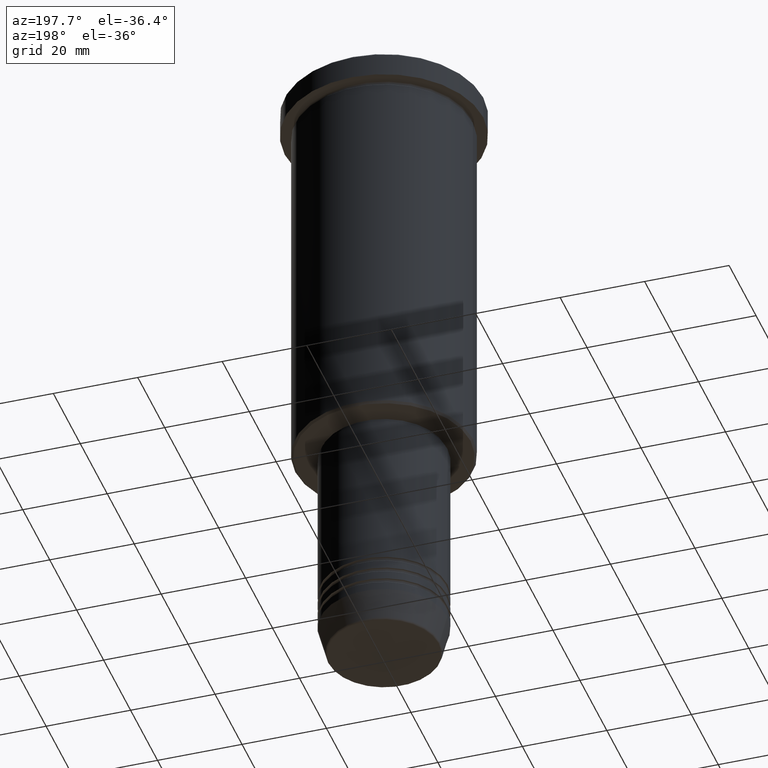
[diagram: clean part render]
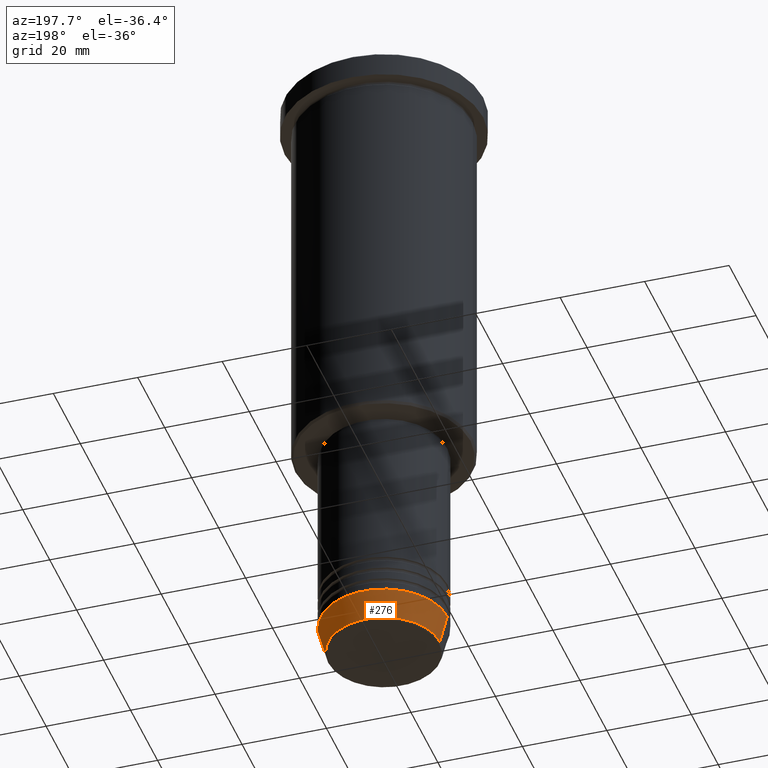
[diagram: same view with one face highlighted and labeled with its STEP entity id]
A machine part, auxiliary view. The second image highlights one B-rep face of the part: STEP entity #276.
In plain terms, the highlighted conical surface has half-angle 15 deg.
Its self-contained STEP definition (entity closure, byte-faithful):
#64 = CARTESIAN_POINT ( 'NONE',  ( 15.00000000000000000, 0.000000000000000000, -144.0000000000000284 ) ) ;
#66 = ORIENTED_EDGE ( 'NONE', *, *, #497, .T. ) ;
#72 = CIRCLE ( 'NONE', #227, 13.22365507213719305 ) ;
#108 = CARTESIAN_POINT ( 'NONE',  ( -15.00000000000000000, 1.836970198721029589E-15, -144.0000000000000284 ) ) ;
#109 = VECTOR ( 'NONE', #671, 1000.000000000000000 ) ;
#168 = DIRECTION ( 'NONE',  ( 1.000000000000000000, 0.000000000000000000, 0.000000000000000000 ) ) ;
#192 = CARTESIAN_POINT ( 'NONE',  ( -15.00000000000000000, 1.836970198721029589E-15, -144.0000000000000284 ) ) ;
#227 = AXIS2_PLACEMENT_3D ( 'NONE', #996, #468, #835 ) ;
#276 = ADVANCED_FACE ( 'NONE', ( #778 ), #876, .T. ) ;
#288 = LINE ( 'NONE', #192, #512 ) ;
#324 = CIRCLE ( 'NONE', #981, 15.00000000000000000 ) ;
#338 = CARTESIAN_POINT ( 'NONE',  ( 0.000000000000000000, 0.000000000000000000, -144.0000000000000284 ) ) ;
#349 = VERTEX_POINT ( 'NONE', #689 ) ;
#359 = AXIS2_PLACEMENT_3D ( 'NONE', #338, #983, #168 ) ;
#393 = EDGE_CURVE ( 'NONE', #724, #514, #324, .T. ) ;
#468 = DIRECTION ( 'NONE',  ( -0.000000000000000000, -0.000000000000000000, 1.000000000000000000 ) ) ;
#479 = ORIENTED_EDGE ( 'NONE', *, *, #626, .F. ) ;
#497 = EDGE_CURVE ( 'NONE', #606, #514, #288, .T. ) ;
#512 = VECTOR ( 'NONE', #1017, 1000.000000000000000 ) ;
#514 = VERTEX_POINT ( 'NONE', #108 ) ;
#558 = ORIENTED_EDGE ( 'NONE', *, *, #864, .T. ) ;
#572 = CARTESIAN_POINT ( 'NONE',  ( 0.000000000000000000, 0.000000000000000000, -144.0000000000000284 ) ) ;
#606 = VERTEX_POINT ( 'NONE', #872 ) ;
#626 = EDGE_CURVE ( 'NONE', #349, #724, #1052, .T. ) ;
#629 = EDGE_LOOP ( 'NONE', ( #558, #66, #884, #479 ) ) ;
#671 = DIRECTION ( 'NONE',  ( 0.2588190451025209060, 0.000000000000000000, 0.9659258262890682012 ) ) ;
#689 = CARTESIAN_POINT ( 'NONE',  ( 13.22365507213719305, 0.000000000000000000, -150.6294095225512706 ) ) ;
#724 = VERTEX_POINT ( 'NONE', #64 ) ;
#771 = CARTESIAN_POINT ( 'NONE',  ( 15.00000000000000000, 0.000000000000000000, -144.0000000000000284 ) ) ;
#778 = FACE_OUTER_BOUND ( 'NONE', #629, .T. ) ;
#835 = DIRECTION ( 'NONE',  ( 1.000000000000000000, 0.000000000000000000, 0.000000000000000000 ) ) ;
#864 = EDGE_CURVE ( 'NONE', #349, #606, #72, .T. ) ;
#872 = CARTESIAN_POINT ( 'NONE',  ( -13.22365507213719305, 1.728200442216588780E-15, -150.6294095225512706 ) ) ;
#876 = CONICAL_SURFACE ( 'NONE', #359, 15.00000000000000000, 0.2617993877991495744 ) ;
#884 = ORIENTED_EDGE ( 'NONE', *, *, #393, .F. ) ;
#921 = DIRECTION ( 'NONE',  ( -0.000000000000000000, -0.000000000000000000, 1.000000000000000000 ) ) ;
#981 = AXIS2_PLACEMENT_3D ( 'NONE', #572, #921, #1109 ) ;
#983 = DIRECTION ( 'NONE',  ( -0.000000000000000000, -0.000000000000000000, 1.000000000000000000 ) ) ;
#996 = CARTESIAN_POINT ( 'NONE',  ( 0.000000000000000000, 0.000000000000000000, -150.6294095225512706 ) ) ;
#1017 = DIRECTION ( 'NONE',  ( -0.2588190451025209060, 3.169619151431766790E-17, 0.9659258262890682012 ) ) ;
#1052 = LINE ( 'NONE', #771, #109 ) ;
#1109 = DIRECTION ( 'NONE',  ( 1.000000000000000000, 0.000000000000000000, 0.000000000000000000 ) ) ;